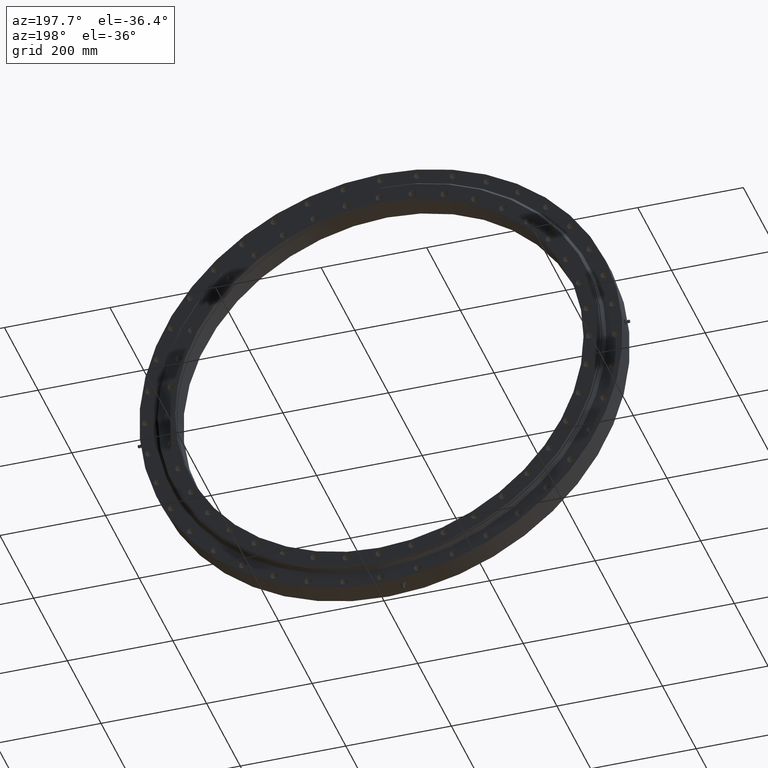
[diagram: clean part render]
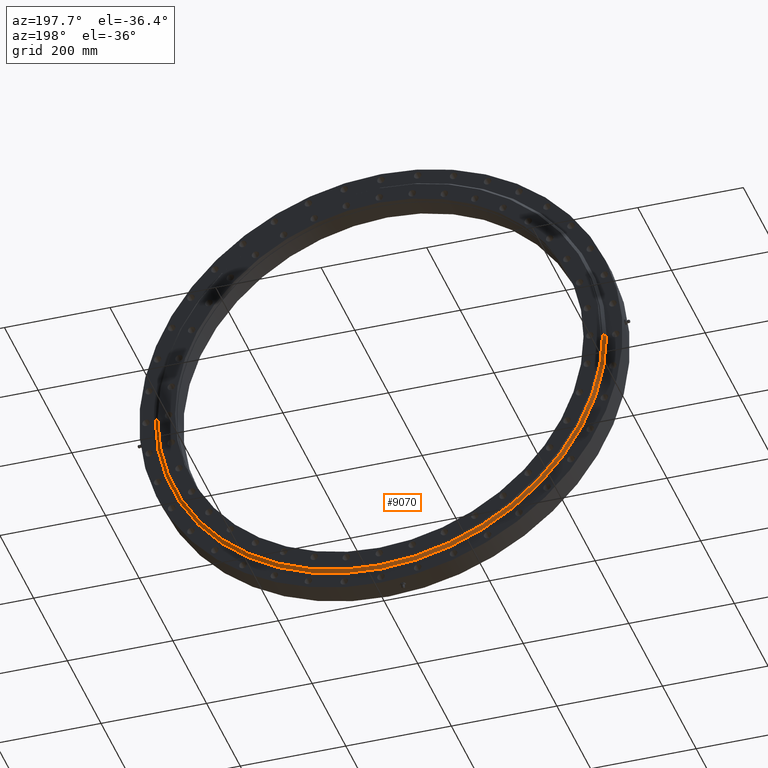
[diagram: same view with one face highlighted and labeled with its STEP entity id]
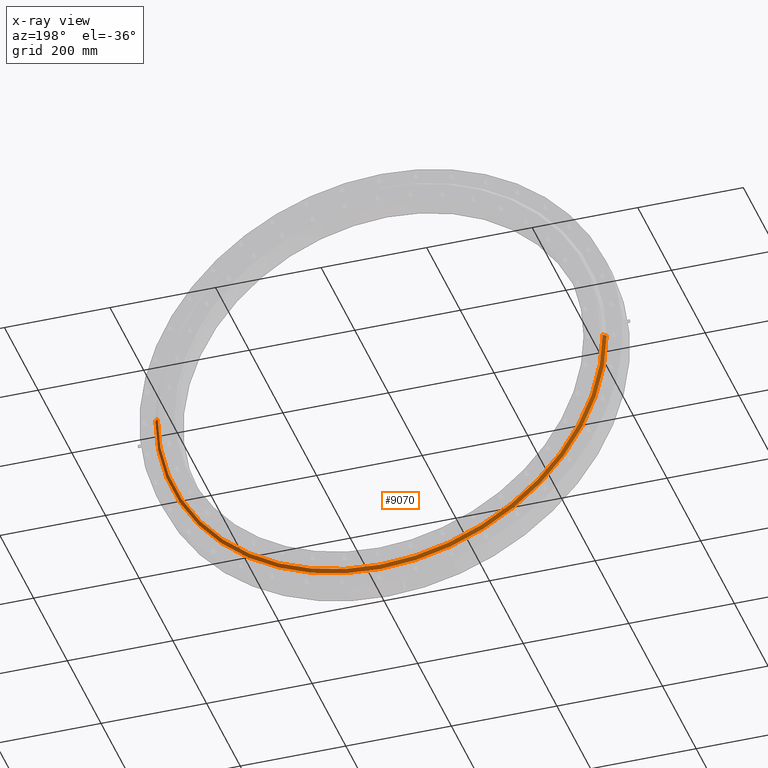
[diagram: x-ray of the same camera — body ghosted, the highlighted face saturated]
A machine part, auxiliary view. The second image highlights one B-rep face of the part: STEP entity #9070.
The next image is the same camera in x-ray: the body ghosted, the highlighted face saturated — about 0% of this face is hidden behind the body in this view.
In plain terms, the highlighted conical surface has half-angle 49.914 deg.
Its self-contained STEP definition (entity closure, byte-faithful):
#55 = ORIENTED_EDGE ( 'NONE', *, *, #1580, .T. ) ;
#156 = DIRECTION ( 'NONE',  ( 1.836909530733565900E-016, 1.000000000000000000, -0.0000000000000000000 ) ) ;
#250 = CARTESIAN_POINT ( 'NONE',  ( 427.5249999999999800, 17.99999999999984000, 0.0000000000000000000 ) ) ;
#442 = AXIS2_PLACEMENT_3D ( 'NONE', #2037, #6971, #4170 ) ;
#704 = CARTESIAN_POINT ( 'NONE',  ( -427.5249999999999800, 18.00000000000000000, 5.235671228054721900E-014 ) ) ;
#1580 = EDGE_CURVE ( 'NONE', #7869, #8422, #6764, .T. ) ;
#1685 = CONICAL_SURFACE ( 'NONE', #3769, 427.5249999999999800, 0.8711601305813023700 ) ;
#1720 = DIRECTION ( 'NONE',  ( -1.836909530733565900E-016, -1.000000000000000000, 0.0000000000000000000 ) ) ;
#1884 = EDGE_CURVE ( 'NONE', #8262, #2169, #10618, .T. ) ;
#2037 = CARTESIAN_POINT ( 'NONE',  ( -1.561484025612103600E-015, 23.05000000000000100, 0.0000000000000000000 ) ) ;
#2169 = VERTEX_POINT ( 'NONE', #5202 ) ;
#2738 = CARTESIAN_POINT ( 'NONE',  ( 427.5249999999999800, 17.99999999999984000, 0.0000000000000000000 ) ) ;
#3284 = LINE ( 'NONE', #2738, #10113 ) ;
#3375 = FACE_OUTER_BOUND ( 'NONE', #4735, .T. ) ;
#3431 = CARTESIAN_POINT ( 'NONE',  ( 421.5249999999999800, 23.04999999999992600, 0.0000000000000000000 ) ) ;
#3769 = AXIS2_PLACEMENT_3D ( 'NONE', #9127, #1720, #9199 ) ;
#4170 = DIRECTION ( 'NONE',  ( -1.000000000000000000, 1.810754592087765100E-016, 0.0000000000000000000 ) ) ;
#4735 = EDGE_LOOP ( 'NONE', ( #9535, #6482, #4904, #55 ) ) ;
#4817 = LINE ( 'NONE', #704, #9847 ) ;
#4904 = ORIENTED_EDGE ( 'NONE', *, *, #7676, .T. ) ;
#5202 = CARTESIAN_POINT ( 'NONE',  ( -421.5249999999999800, 23.05000000000007900, 5.198931824080301400E-014 ) ) ;
#5384 = CARTESIAN_POINT ( 'NONE',  ( -2.489123338632569100E-015, 17.99999999999991800, 0.0000000000000000000 ) ) ;
#6482 = ORIENTED_EDGE ( 'NONE', *, *, #1884, .F. ) ;
#6492 = DIRECTION ( 'NONE',  ( -0.7650765054985522200, -0.6439393921279578100, 9.369484935616440700E-017 ) ) ;
#6764 = CIRCLE ( 'NONE', #7517, 427.5249999999999800 ) ;
#6971 = DIRECTION ( 'NONE',  ( 1.836909530733565900E-016, 1.000000000000000000, -0.0000000000000000000 ) ) ;
#7074 = CARTESIAN_POINT ( 'NONE',  ( -427.5249999999999800, 18.00000000000000000, 5.235671228054721300E-014 ) ) ;
#7517 = AXIS2_PLACEMENT_3D ( 'NONE', #5384, #156, #8745 ) ;
#7676 = EDGE_CURVE ( 'NONE', #8262, #7869, #3284, .T. ) ;
#7869 = VERTEX_POINT ( 'NONE', #250 ) ;
#8262 = VERTEX_POINT ( 'NONE', #3431 ) ;
#8422 = VERTEX_POINT ( 'NONE', #7074 ) ;
#8745 = DIRECTION ( 'NONE',  ( -1.000000000000000000, 1.866493886788682100E-016, 0.0000000000000000000 ) ) ;
#9070 = ADVANCED_FACE ( 'NONE', ( #3375 ), #1685, .T. ) ;
#9127 = CARTESIAN_POINT ( 'NONE',  ( -2.489123338632569100E-015, 17.99999999999991800, 0.0000000000000000000 ) ) ;
#9199 = DIRECTION ( 'NONE',  ( 1.000000000000000000, -1.866493886788682100E-016, 0.0000000000000000000 ) ) ;
#9239 = DIRECTION ( 'NONE',  ( 0.7650765054985518800, -0.6439393921279580300, 0.0000000000000000000 ) ) ;
#9535 = ORIENTED_EDGE ( 'NONE', *, *, #10149, .F. ) ;
#9847 = VECTOR ( 'NONE', #6492, 1000.000000000000100 ) ;
#10113 = VECTOR ( 'NONE', #9239, 1000.000000000000100 ) ;
#10149 = EDGE_CURVE ( 'NONE', #2169, #8422, #4817, .T. ) ;
#10618 = CIRCLE ( 'NONE', #442, 421.5249999999999800 ) ;